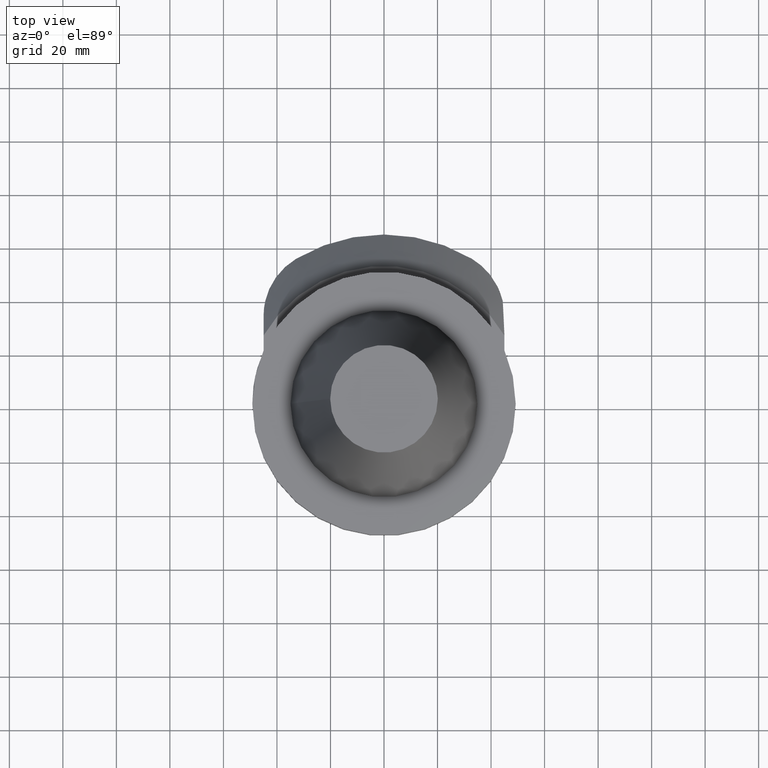
[diagram: clean part render]
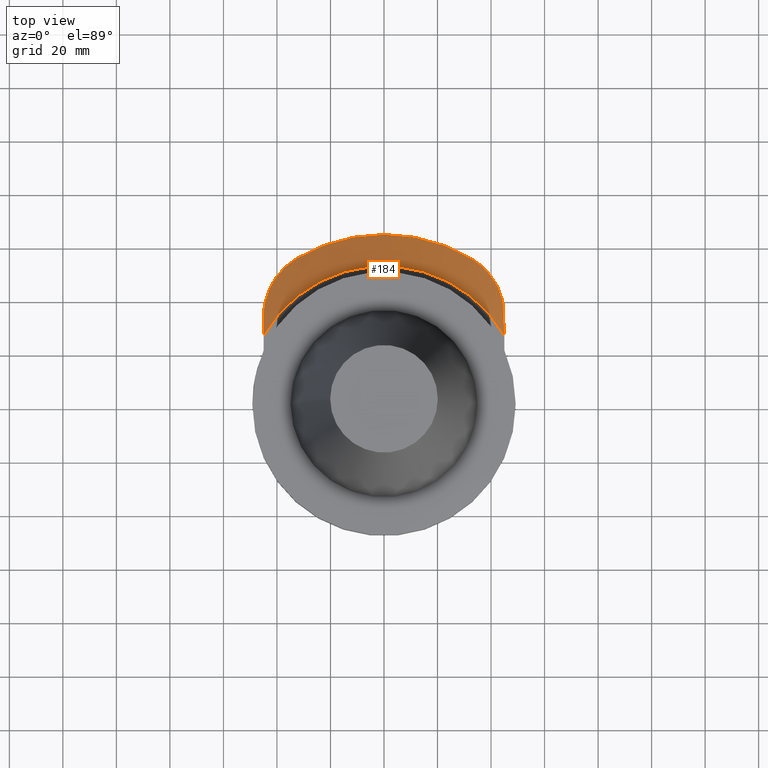
[diagram: same view with one face highlighted and labeled with its STEP entity id]
A machine part, top view. The second image highlights one B-rep face of the part: STEP entity #184.
In plain terms, the highlighted conical surface has half-angle 45 deg.
Its self-contained STEP definition (entity closure, byte-faithful):
#114=EDGE_CURVE('Unnamed[1]',#317,#318,#319,.T.);
#134=EDGE_CURVE('Unnamed[1]',#347,#350,#351,.T.);
#184=ADVANCED_FACE('Unnamed[1]',(#420),#421,.T.);
#193=EDGE_CURVE('Unnamed[1]',#318,#347,#432,.T.);
#195=EDGE_CURVE('Unnamed[1]',#317,#434,#435,.T.);
#210=EDGE_CURVE('Unnamed[1]',#350,#454,#457,.T.);
#238=EDGE_CURVE('Unnamed[1]',#454,#434,#497,.T.);
#317=VERTEX_POINT('',#586);
#318=VERTEX_POINT('',#587);
#319=B_SPLINE_CURVE_WITH_KNOTS('',3,(#588,#589,#590,#591,#592,#593,#594,#595,#596,#597,#598,#599,#600,#601,#602,#603,#604,#605,#606,#607,#608,#609),.UNSPECIFIED.,.F.,.F.,(4,2,2,2,2,2,2,2,2,2,4),(32.8394194779171,34.7964011372256,36.7533827965341,38.7103644558426,42.6243277744596,46.5382910930767,50.4522544116937,52.8448228945384,55.2373913773831,60.0225283430724,64.8076653087618),.UNSPECIFIED.);
#347=VERTEX_POINT('',#649);
#350=VERTEX_POINT('',#654);
#351=CIRCLE('',#655,51.9999999999999);
#420=FACE_OUTER_BOUND('',#752,.T.);
#421=CONICAL_SURFACE('',#753,57.9999999999998,0.785398163397448);
#432=(B_SPLINE_CURVE(2,(#771,#772,#773),.UNSPECIFIED.,.F.,.F.)B_SPLINE_CURVE_WITH_KNOTS((3,3),(0.0,22.8709444091253),.UNSPECIFIED.)RATIONAL_B_SPLINE_CURVE((1.0,1.01436146243064,1.0))BOUNDED_CURVE()REPRESENTATION_ITEM('')GEOMETRIC_REPRESENTATION_ITEM()CURVE());
#434=VERTEX_POINT('',#782);
#435=CIRCLE('',#783,63.9999999999996);
#454=VERTEX_POINT('',#808);
#457=(B_SPLINE_CURVE(2,(#813,#814,#815),.UNSPECIFIED.,.F.,.F.)B_SPLINE_CURVE_WITH_KNOTS((3,3),(0.0,23.7680413790468),.UNSPECIFIED.)RATIONAL_B_SPLINE_CURVE((1.0,1.01384614119179,1.0))BOUNDED_CURVE()REPRESENTATION_ITEM('')GEOMETRIC_REPRESENTATION_ITEM()CURVE());
#497=B_SPLINE_CURVE_WITH_KNOTS('',3,(#873,#874,#875,#876,#877,#878,#879,#880,#881,#882,#883,#884,#885,#886,#887,#888,#889,#890,#891,#892,#893,#894),.UNSPECIFIED.,.F.,.F.,(4,2,2,2,2,2,2,2,2,2,4),(4.7851369656893,9.5702739313786,14.3554108970679,16.7479793799126,19.1405478627572,23.0545111813742,26.9684744999912,30.8824378186082,32.8394194779167,34.7964011372251,36.7533827965336),.UNSPECIFIED.);
#586=CARTESIAN_POINT('',(-32.8205128205145,54.9437342942625,-47.0000000000007));
#587=CARTESIAN_POINT('',(-45.0000000000007,33.4813380855666,-39.0892146495215));
#588=CARTESIAN_POINT('',(-31.0759928747108,55.893887736139,-46.9518883177753));
#589=CARTESIAN_POINT('',(-31.6775533839552,55.5966042936937,-46.9843777844007));
#590=CARTESIAN_POINT('',(-32.2604926105774,55.2782610736319,-47.0000000000007));
#591=CARTESIAN_POINT('',(-33.3805330304503,54.6092075148939,-47.0000000000007));
#592=CARTESIAN_POINT('',(-33.9371677849014,54.2468288485359,-46.9843777844007));
#593=CARTESIAN_POINT('',(-35.0310047670385,53.4693131752229,-46.9193988511498));
#594=CARTESIAN_POINT('',(-35.5682079417749,53.0541773787034,-46.8700435922375));
#595=CARTESIAN_POINT('',(-37.1341468154317,51.7373387144859,-46.6698856350647));
#596=CARTESIAN_POINT('',(-38.1164426533126,50.763168999609,-46.4662737210916));
#597=CARTESIAN_POINT('',(-39.8920686133915,48.6857053376522,-45.9275807062338));
#598=CARTESIAN_POINT('',(-40.6868228858491,47.5809060631316,-45.592073170251));
#599=CARTESIAN_POINT('',(-42.05659636646,45.3240157822191,-44.8177252085511));
#600=CARTESIAN_POINT('',(-42.6317207682664,44.172005399676,-44.3788358865793));
#601=CARTESIAN_POINT('',(-43.3829828617962,42.357771964723,-43.6282950330194));
#602=CARTESIAN_POINT('',(-43.6394601463752,41.6510204096534,-43.3220426404158));
#603=CARTESIAN_POINT('',(-44.0885797422425,40.2124681014381,-42.6689559132447));
#604=CARTESIAN_POINT('',(-44.2812305284091,39.4806703748303,-42.3221207402296));
#605=CARTESIAN_POINT('',(-44.7579416504319,37.2661631987074,-41.2262265239291));
#606=CARTESIAN_POINT('',(-44.9394671376526,35.7642203919041,-40.4211063875234));
#607=CARTESIAN_POINT('',(-45.0346532081921,32.8069630561007,-38.7042644691875));
#608=CARTESIAN_POINT('',(-44.9485642712005,31.3500708502179,-37.7914887530078));
#609=CARTESIAN_POINT('',(-44.7506740801499,29.9593879754386,-36.8533913369499));
#649=CARTESIAN_POINT('',(-45.0000000000007,26.0576284415893,-35.0));
#654=CARTESIAN_POINT('',(44.9999999999993,26.0576284415919,-35.0));
#655=AXIS2_PLACEMENT_3D('',#1014,#1015,#1016);
#752=EDGE_LOOP('',(#1108,#1109,#1110,#1111,#1112,#1113));
#753=AXIS2_PLACEMENT_3D('',#1114,#1115,#1116);
#771=CARTESIAN_POINT('',(-45.0000000000007,45.5082410119298,-46.9999999999997));
#772=CARTESIAN_POINT('',(-45.0000000000007,34.7768685593282,-39.369283063097));
#773=CARTESIAN_POINT('',(-45.0000000000007,26.0576284415893,-35.0));
#782=CARTESIAN_POINT('',(32.8205128205149,54.9437342942619,-47.0000000000004));
#783=AXIS2_PLACEMENT_3D('',#1125,#1126,#1127);
#808=CARTESIAN_POINT('',(44.3795587664689,39.01641842397,-42.0916757499757));
#813=CARTESIAN_POINT('',(45.0000000000002,26.0576284415903,-35.0));
#814=CARTESIAN_POINT('',(44.6230700603201,35.3061658488541,-39.3083289250197));
#815=CARTESIAN_POINT('',(43.9500940292717,46.5236573726211,-47.0004801584087));
#873=CARTESIAN_POINT('',(44.7506740801486,29.9593879754404,-36.8533913369498));
#874=CARTESIAN_POINT('',(44.9485642711992,31.3500708502197,-37.7914887530077));
#875=CARTESIAN_POINT('',(45.0346532081906,32.8069630561025,-38.7042644691874));
#876=CARTESIAN_POINT('',(44.939467137651,35.7642203919058,-40.4211063875233));
#877=CARTESIAN_POINT('',(44.7579416504302,37.2661631987091,-41.2262265239289));
#878=CARTESIAN_POINT('',(44.2812305284074,39.480670374832,-42.3221207402294));
#879=CARTESIAN_POINT('',(44.0885797422407,40.2124681014398,-42.6689559132446));
#880=CARTESIAN_POINT('',(43.6394601463734,41.6510204096551,-43.3220426404156));
#881=CARTESIAN_POINT('',(43.3829828617943,42.3577719647246,-43.6282950330192));
#882=CARTESIAN_POINT('',(42.6317207682645,44.1720053996776,-44.3788358865791));
#883=CARTESIAN_POINT('',(42.0565963664579,45.3240157822207,-44.8177252085508));
#884=CARTESIAN_POINT('',(40.686822885847,47.5809060631331,-45.5920731702507));
#885=CARTESIAN_POINT('',(39.8920686133894,48.6857053376536,-45.9275807062335));
#886=CARTESIAN_POINT('',(38.1164426533105,50.7631689996103,-46.4662737210913));
#887=CARTESIAN_POINT('',(37.1341468154294,51.7373387144872,-46.6698856350643));
#888=CARTESIAN_POINT('',(35.5682079417726,53.0541773787046,-46.8700435922372));
#889=CARTESIAN_POINT('',(35.0310047670362,53.4693131752241,-46.9193988511495));
#890=CARTESIAN_POINT('',(33.9371677848991,54.246828848537,-46.9843777844004));
#891=CARTESIAN_POINT('',(33.380533030448,54.609207514895,-47.0000000000004));
#892=CARTESIAN_POINT('',(32.2604926105751,55.2782610736329,-47.0000000000004));
#893=CARTESIAN_POINT('',(31.6775533839529,55.5966042936947,-46.9843777844004));
#894=CARTESIAN_POINT('',(31.0759928747084,55.89388773614,-46.9518883177749));
#1014=CARTESIAN_POINT('',(4.28626379701574E-015,-2.14313189850787E-015,-35.0));
#1015=DIRECTION('',(1.22464679914735E-016,-6.12323399573677E-017,-1.0));
#1016=DIRECTION('',(-1.0,1.83697019872103E-016,-1.22464679914735E-016));
#1108=ORIENTED_EDGE('',*,*,#210,.T.);
#1109=ORIENTED_EDGE('',*,*,#238,.T.);
#1110=ORIENTED_EDGE('',*,*,#195,.F.);
#1111=ORIENTED_EDGE('',*,*,#114,.T.);
#1112=ORIENTED_EDGE('',*,*,#193,.T.);
#1113=ORIENTED_EDGE('',*,*,#134,.T.);
#1114=CARTESIAN_POINT('',(5.02105187650413E-015,-2.51052593825207E-015,-40.9999999999999));
#1115=DIRECTION('',(1.22464679914735E-016,-6.12323399573677E-017,-1.0));
#1116=DIRECTION('',(-1.0,1.83697019872103E-016,-1.22464679914735E-016));
#1125=CARTESIAN_POINT('',(5.75583995599252E-015,-2.87791997799626E-015,-46.9999999999997));
#1126=DIRECTION('',(1.22464679914735E-016,-6.12323399573677E-017,-1.0));
#1127=DIRECTION('',(-1.0,1.83697019872103E-016,-1.22464679914735E-016));